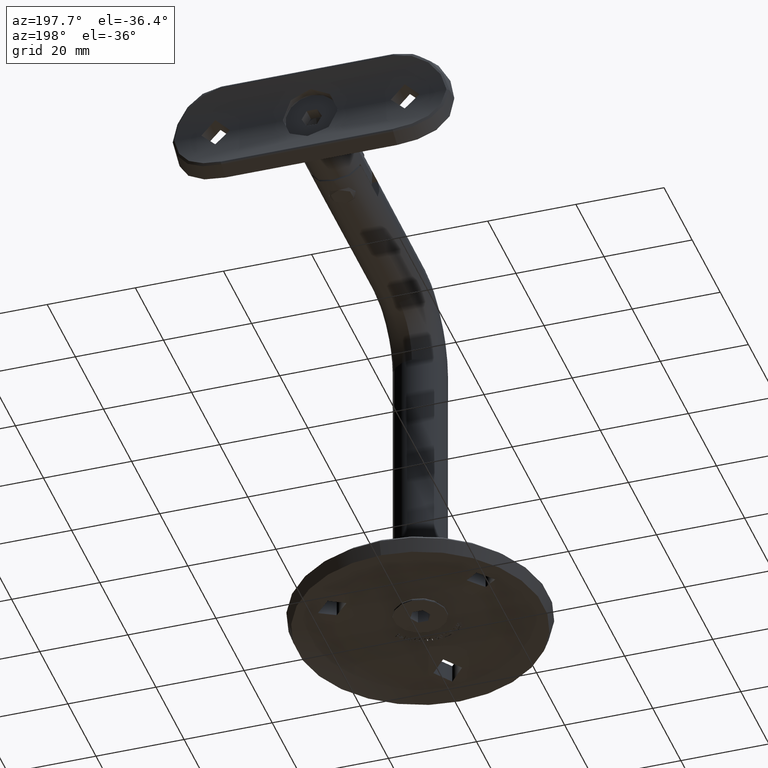
[diagram: clean part render]
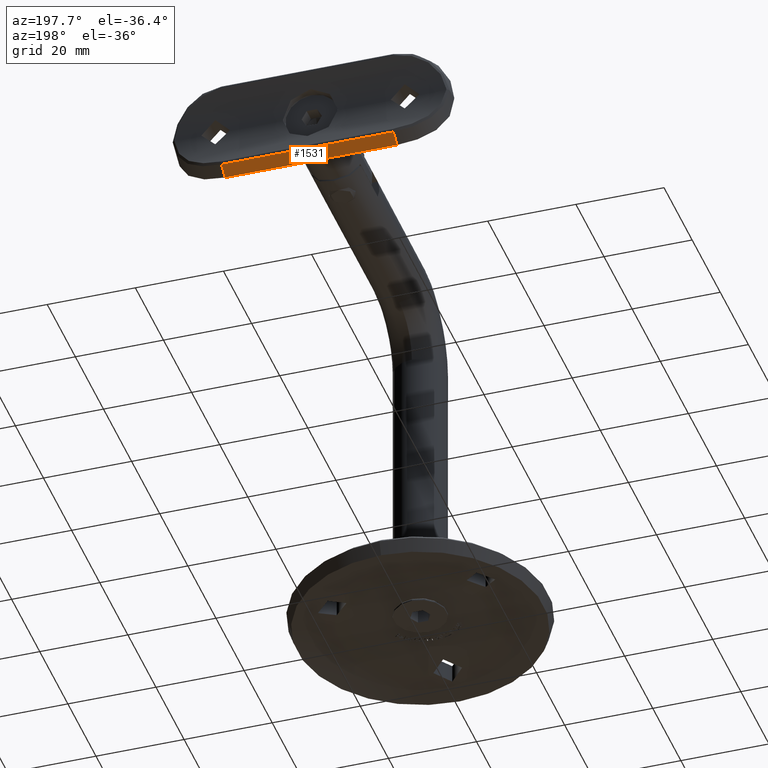
[diagram: same view with one face highlighted and labeled with its STEP entity id]
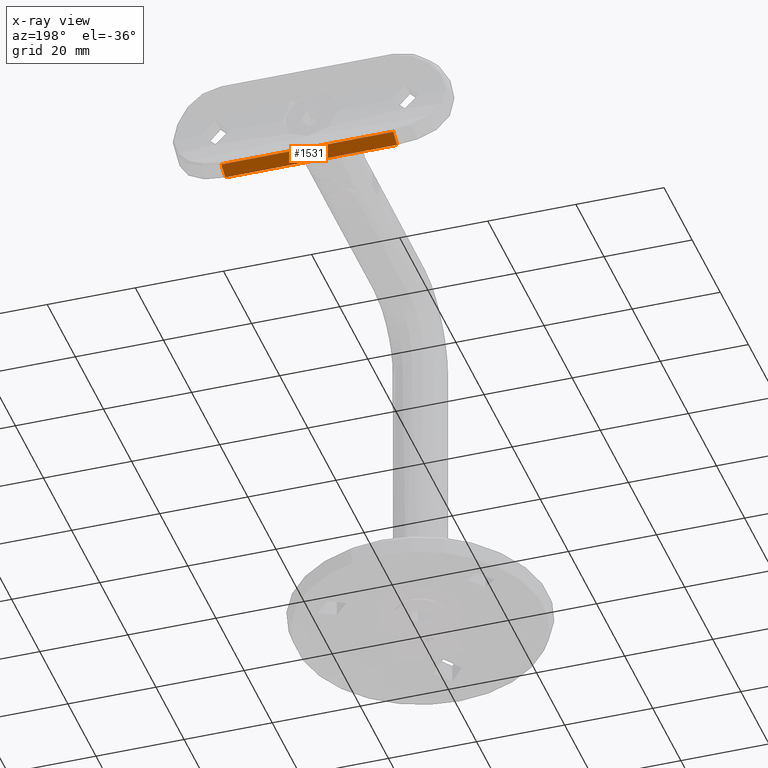
[diagram: x-ray of the same camera — body ghosted, the highlighted face saturated]
A machine part, auxiliary view. The second image highlights one B-rep face of the part: STEP entity #1531.
The next image is the same camera in x-ray: the body ghosted, the highlighted face saturated — about 0% of this face is hidden behind the body in this view.
In plain terms, the highlighted planar face has unit normal (0, -0.4819, 0.8762).
Its self-contained STEP definition (entity closure, byte-faithful):
#238 = VECTOR ( 'NONE', #5786, 1000.000000000000000 ) ;
#316 = DIRECTION ( 'NONE',  ( -8.874685183736382811E-31, -1.316735219854065735E-33, 1.000000000000000000 ) ) ;
#441 = VERTEX_POINT ( 'NONE', #1498 ) ;
#1498 = CARTESIAN_POINT ( 'NONE',  ( 10.45505487545768375, 2.191269701761547228, -19.50000000000000355 ) ) ;
#1531 = ADVANCED_FACE ( 'NONE', ( #13205 ), #9315, .F. ) ;
#1621 = LINE ( 'NONE', #8648, #238 ) ;
#1636 = VECTOR ( 'NONE', #17665, 1000.000000000000000 ) ;
#2876 = ORIENTED_EDGE ( 'NONE', *, *, #18724, .T. ) ;
#3504 = CARTESIAN_POINT ( 'NONE',  ( 11.99999999999999645, -0.6176534026920421638, 31.50000000000008527 ) ) ;
#4987 = DIRECTION ( 'NONE',  ( -0.8762109800277927407, -0.4819277108433742685, 8.936314941956774358E-31 ) ) ;
#5786 = DIRECTION ( 'NONE',  ( 8.874685183736382811E-31, 1.316735219854065735E-33, -1.000000000000000000 ) ) ;
#6065 = EDGE_CURVE ( 'NONE', #441, #12251, #18164, .T. ) ;
#6073 = CARTESIAN_POINT ( 'NONE',  ( 11.99999999999999645, -0.6176534026920421638, -19.50000000000000355 ) ) ;
#6914 = LINE ( 'NONE', #17724, #1636 ) ;
#7344 = VERTEX_POINT ( 'NONE', #8893 ) ;
#7366 = CARTESIAN_POINT ( 'NONE',  ( 11.99999999999999645, -0.6176534026920421638, -19.50000000000000355 ) ) ;
#8648 = CARTESIAN_POINT ( 'NONE',  ( 11.99999999999999645, -0.6176534026920421638, 31.50000000000008527 ) ) ;
#8893 = CARTESIAN_POINT ( 'NONE',  ( 11.99999999999999645, -0.6176534026920421638, 19.50000000000000000 ) ) ;
#9114 = AXIS2_PLACEMENT_3D ( 'NONE', #3504, #4987, #12362 ) ;
#9315 = PLANE ( 'NONE',  #9114 ) ;
#9328 = ORIENTED_EDGE ( 'NONE', *, *, #17191, .T. ) ;
#10076 = VECTOR ( 'NONE', #16466, 1000.000000000000000 ) ;
#11241 = LINE ( 'NONE', #6073, #10076 ) ;
#12251 = VERTEX_POINT ( 'NONE', #13429 ) ;
#12362 = DIRECTION ( 'NONE',  ( 0.4819277108433742685, -0.8762109800277927407, -5.854827030937196993E-31 ) ) ;
#13205 = FACE_OUTER_BOUND ( 'NONE', #18276, .T. ) ;
#13429 = CARTESIAN_POINT ( 'NONE',  ( 10.45505487545768375, 2.191269701761560995, 19.50000000000000000 ) ) ;
#13593 = VECTOR ( 'NONE', #316, 1000.000000000000000 ) ;
#13918 = ORIENTED_EDGE ( 'NONE', *, *, #17852, .T. ) ;
#14926 = ORIENTED_EDGE ( 'NONE', *, *, #6065, .T. ) ;
#16466 = DIRECTION ( 'NONE',  ( -0.4819277108433742685, 0.8762109800277927407, 5.854827030937196993E-31 ) ) ;
#17191 = EDGE_CURVE ( 'NONE', #12251, #7344, #6914, .T. ) ;
#17665 = DIRECTION ( 'NONE',  ( 0.4819277108433742685, -0.8762109800277927407, -5.854827030937196993E-31 ) ) ;
#17724 = CARTESIAN_POINT ( 'NONE',  ( 11.99999999999999645, -0.6176534026920421638, 19.50000000000000000 ) ) ;
#17852 = EDGE_CURVE ( 'NONE', #7344, #18278, #1621, .T. ) ;
#18069 = CARTESIAN_POINT ( 'NONE',  ( 10.45505487545768375, 2.191269701761560995, 19.50000000000000000 ) ) ;
#18164 = LINE ( 'NONE', #18069, #13593 ) ;
#18276 = EDGE_LOOP ( 'NONE', ( #2876, #14926, #9328, #13918 ) ) ;
#18278 = VERTEX_POINT ( 'NONE', #7366 ) ;
#18724 = EDGE_CURVE ( 'NONE', #18278, #441, #11241, .T. ) ;